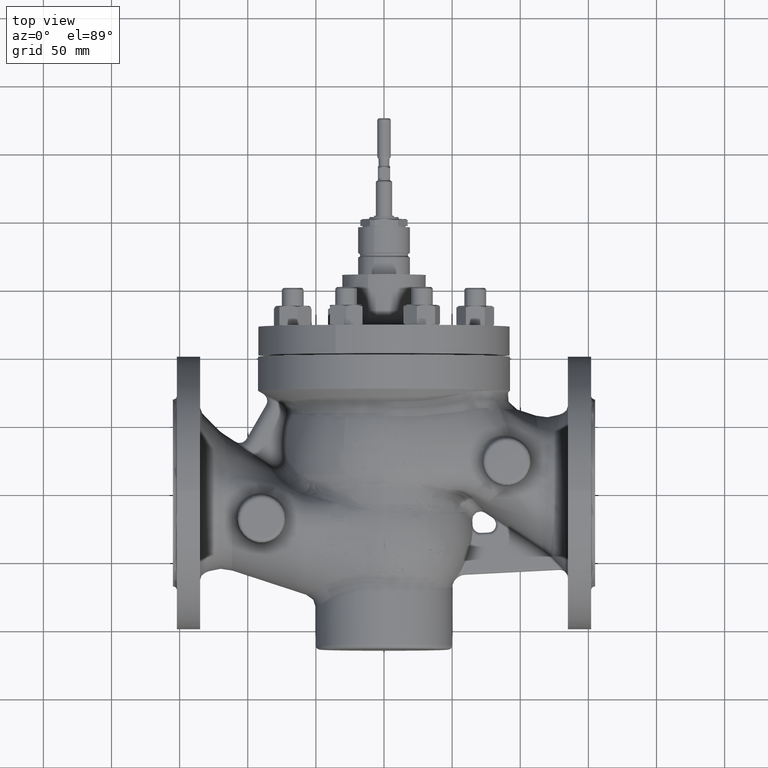
[diagram: clean part render]
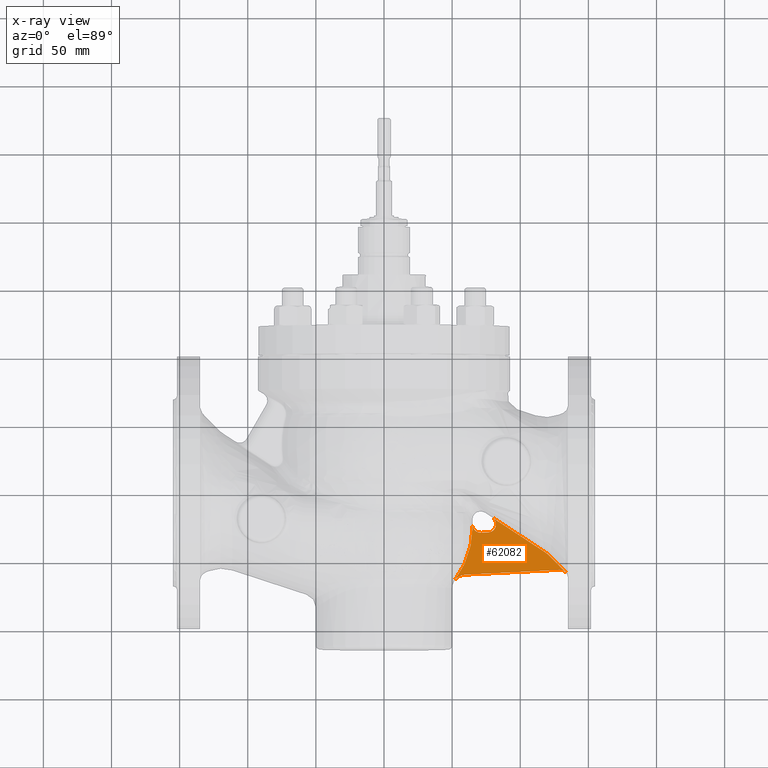
[diagram: x-ray — body ghosted, one internal face saturated and labeled with its STEP entity id]
A machine part, top view, then the same camera in x-ray: the body is ghosted and one INTERNAL B-rep face — a face not visible from any outside direction — is saturated and labeled: STEP entity #62082.
In plain terms, the highlighted planar face has unit normal (0, 0, 1).
Its self-contained STEP definition (entity closure, byte-faithful):
#3194 = EDGE_CURVE ( 'NONE', #36313, #146080, #50423, .T. ) ;
#4504 = VECTOR ( 'NONE', #110429, 1000.000000000000000 ) ;
#4753 = CARTESIAN_POINT ( 'NONE',  ( 117.8427582565180000, -43.30953236035019700, 0.02500000000000000100 ) ) ;
#4908 = ORIENTED_EDGE ( 'NONE', *, *, #214493, .F. ) ;
#7238 = CARTESIAN_POINT ( 'NONE',  ( 82.21968799206042900, -23.13017826876830800, 0.02499999999999999800 ) ) ;
#7498 = CARTESIAN_POINT ( 'NONE',  ( 67.25756937767720000, -28.08436771730998800, 0.02500000000000000100 ) ) ;
#7981 = CARTESIAN_POINT ( 'NONE',  ( 79.47799630254508000, -28.15001369179655600, 0.02500000000000000500 ) ) ;
#9271 = AXIS2_PLACEMENT_3D ( 'NONE', #157021, #53603, #174350 ) ;
#10170 = ORIENTED_EDGE ( 'NONE', *, *, #106017, .T. ) ;
#10675 = CARTESIAN_POINT ( 'NONE',  ( 110.5509075900524000, -38.51138769444470700, 0.02500000000000000100 ) ) ;
#12164 = CARTESIAN_POINT ( 'NONE',  ( 71.28902120242450700, -29.36779990385665300, 0.02500000000000000100 ) ) ;
#15455 = EDGE_CURVE ( 'NONE', #146080, #60257, #198242, .T. ) ;
#16217 = CARTESIAN_POINT ( 'NONE',  ( 64.98930302670817100, -23.68329853732720400, 0.02500000000000000100 ) ) ;
#16490 = VERTEX_POINT ( 'NONE', #189987 ) ;
#16874 = DIRECTION ( 'NONE',  ( 1.000000000000000000, 0.0000000000000000000, 0.0000000000000000000 ) ) ;
#17128 = EDGE_CURVE ( 'NONE', #182906, #78696, #53164, .T. ) ;
#17459 = CARTESIAN_POINT ( 'NONE',  ( 133.2820038425403800, -58.24967153179039800, 0.02500000000000000100 ) ) ;
#17739 = ORIENTED_EDGE ( 'NONE', *, *, #202924, .T. ) ;
#20114 = B_SPLINE_CURVE_WITH_KNOTS ( 'NONE', 3,
 ( #95204, #165401, #96688, #217444, #114072, #10675, #131389, #28027, #148760 ),
 .UNSPECIFIED., .F., .F.,
 ( 4, 2, 1, 2, 4 ),
 ( 0.1240357815538172000, 0.5000000000000000000, 0.7500000000000000000, 0.8750000000000000000, 1.000000000000000000 ),
 .UNSPECIFIED. ) ;
#21356 = VERTEX_POINT ( 'NONE', #204614 ) ;
#24377 = CARTESIAN_POINT ( 'NONE',  ( 62.34197996200149600, -29.82710111252465200, 0.02500000000000000100 ) ) ;
#24596 = DIRECTION ( 'NONE',  ( 0.9986849297500293200, 0.05126803185396271900, 0.0000000000000000000 ) ) ;
#24597 = CARTESIAN_POINT ( 'NONE',  ( 82.14200407331510700, -24.07037620390699200, 0.02499999999999999100 ) ) ;
#24864 = CARTESIAN_POINT ( 'NONE',  ( 66.67054406410746000, -27.56727275851982400, 0.02500000000000000100 ) ) ;
#25343 = CARTESIAN_POINT ( 'NONE',  ( 78.64841096245261600, -28.59891615864598800, 0.02500000000000000500 ) ) ;
#28027 = CARTESIAN_POINT ( 'NONE',  ( 116.0221392584064000, -42.10633365646359700, 0.02500000000000000100 ) ) ;
#30799 = ORIENTED_EDGE ( 'NONE', *, *, #3194, .F. ) ;
#31366 = ORIENTED_EDGE ( 'NONE', *, *, #59773, .T. ) ;
#31941 = CARTESIAN_POINT ( 'NONE',  ( 59.48731968146039900, -60.01315070249959400, 0.02500000000000000100 ) ) ;
#36313 = VERTEX_POINT ( 'NONE', #118141 ) ;
#38967 = EDGE_CURVE ( 'NONE', #21356, #182906, #164741, .T. ) ;
#41188 = CARTESIAN_POINT ( 'NONE',  ( 80.50293416270423600, -18.86676010782229400, 0.02500000000000000500 ) ) ;
#41935 = CARTESIAN_POINT ( 'NONE',  ( 81.92029473466824600, -24.98018371431900400, 0.02500000000000000500 ) ) ;
#42194 = CARTESIAN_POINT ( 'NONE',  ( 65.93224362554181500, -26.64098916104409700, 0.02500000000000000500 ) ) ;
#42677 = CARTESIAN_POINT ( 'NONE',  ( 77.15090761103164100, -29.06687678970092700, 0.02500000000000000500 ) ) ;
#43016 = ORIENTED_EDGE ( 'NONE', *, *, #171569, .T. ) ;
#47767 = VECTOR ( 'NONE', #24596, 1000.000000000000000 ) ;
#49239 = EDGE_CURVE ( 'NONE', #148759, #16490, #112517, .T. ) ;
#50423 = LINE ( 'NONE', #24377, #4504 ) ;
#52920 = VERTEX_POINT ( 'NONE', #4753 ) ;
#53164 = LINE ( 'NONE', #180047, #47767 ) ;
#53603 = DIRECTION ( 'NONE',  ( -0.0000000000000000000, -0.0000000000000000000, -1.000000000000000000 ) ) ;
#56581 = ORIENTED_EDGE ( 'NONE', *, *, #49239, .T. ) ;
#57137 = AXIS2_PLACEMENT_3D ( 'NONE', #165493, #62066, #182804 ) ;
#58566 = CARTESIAN_POINT ( 'NONE',  ( 81.27061739758829600, -19.86632388080428400, 0.02500000000000000100 ) ) ;
#58834 = CARTESIAN_POINT ( 'NONE',  ( 71.28902120242450700, -29.36779990385665300, 0.02500000000000000100 ) ) ;
#59314 = CARTESIAN_POINT ( 'NONE',  ( 81.55621362619581300, -25.85183045235871500, 0.02500000000000000500 ) ) ;
#59570 = CARTESIAN_POINT ( 'NONE',  ( 65.39443289206947400, -25.59807146609349700, 0.02500000000000000500 ) ) ;
#59773 = EDGE_CURVE ( 'NONE', #21356, #148759, #222341, .T. ) ;
#60257 = VERTEX_POINT ( 'NONE', #68793 ) ;
#60618 = VERTEX_POINT ( 'NONE', #17459 ) ;
#61034 = VERTEX_POINT ( 'NONE', #106470 ) ;
#62066 = DIRECTION ( 'NONE',  ( 0.0000000000000000000, 0.0000000000000000000, 1.000000000000000000 ) ) ;
#62082 = ADVANCED_FACE ( 'NONE', ( #162781 ), #161008, .F. ) ;
#66747 = LINE ( 'NONE', #198635, #193644 ) ;
#68286 = CARTESIAN_POINT ( 'NONE',  ( 64.98428503009466800, -23.56985522443235200, 0.02500000000000000100 ) ) ;
#68793 = CARTESIAN_POINT ( 'NONE',  ( 64.98930302670817100, -23.68329853732720400, 0.02500000000000000100 ) ) ;
#72899 = CIRCLE ( 'NONE', #128104, 25.00042097777810600 ) ;
#74970 = DIRECTION ( 'NONE',  ( 0.0000000000000000000, 0.0000000000000000000, 1.000000000000000000 ) ) ;
#75931 = CARTESIAN_POINT ( 'NONE',  ( 81.71245257958077000, -20.69083047071363500, 0.02500000000000000100 ) ) ;
#76196 = CARTESIAN_POINT ( 'NONE',  ( 69.34051903568384000, -29.16023778268589700, 0.02500000000000000100 ) ) ;
#76475 = CARTESIAN_POINT ( 'NONE',  ( 65.00000000000000000, -25.00000000000000000, 0.02500000000000000100 ) ) ;
#76675 = CARTESIAN_POINT ( 'NONE',  ( 81.06522508585473500, -26.64829624320373800, 0.02499999999999999800 ) ) ;
#76928 = CARTESIAN_POINT ( 'NONE',  ( 65.06735039617613800, -24.46097334568738500, 0.02500000000000000100 ) ) ;
#78696 = VERTEX_POINT ( 'NONE', #205601 ) ;
#81276 = EDGE_CURVE ( 'NONE', #135787, #36313, #140432, .T. ) ;
#84285 = AXIS2_PLACEMENT_3D ( 'NONE', #92652, #213414, #110028 ) ;
#91095 = B_SPLINE_CURVE_WITH_KNOTS ( 'NONE', 3,
 ( #16217, #136924, #68286, #189018 ),
 .UNSPECIFIED., .F., .F.,
 ( 4, 4 ),
 ( 0.009694075580220139200, 0.009863835196998493500 ),
 .UNSPECIFIED. ) ;
#91557 = CARTESIAN_POINT ( 'NONE',  ( 92.64100192127020300, -106.7026297337554000, 0.02500000000000000100 ) ) ;
#92652 = CARTESIAN_POINT ( 'NONE',  ( 3.717264591378844400E-015, -25.00000000000000000, 0.02500000000000000100 ) ) ;
#93279 = CARTESIAN_POINT ( 'NONE',  ( 82.02321926425690900, -21.58333371867495400, 0.02499999999999999400 ) ) ;
#93541 = CARTESIAN_POINT ( 'NONE',  ( 68.24791897516483600, -28.73141321631365500, 0.02499999999999999400 ) ) ;
#94020 = CARTESIAN_POINT ( 'NONE',  ( 80.44986843472783300, -27.36579429837913900, 0.02500000000000000100 ) ) ;
#94279 = CARTESIAN_POINT ( 'NONE',  ( 64.98930302670817100, -23.68329853732720400, 0.02500000000000000100 ) ) ;
#95204 = CARTESIAN_POINT ( 'NONE',  ( 79.51440622362230200, -18.09808608283109900, 0.02500000000000000100 ) ) ;
#96688 = CARTESIAN_POINT ( 'NONE',  ( 90.48097182560061900, -25.31259641131729800, 0.02500000000000000100 ) ) ;
#98512 = DIRECTION ( 'NONE',  ( -0.0000000000000000000, -0.0000000000000000000, -1.000000000000000000 ) ) ;
#106017 = EDGE_CURVE ( 'NONE', #135787, #52920, #20114, .T. ) ;
#106470 = CARTESIAN_POINT ( 'NONE',  ( 121.9008863757730000, -46.65442252570049700, 0.02500000000000000100 ) ) ;
#110028 = DIRECTION ( 'NONE',  ( 1.000000000000000000, 0.0000000000000000000, 0.0000000000000000000 ) ) ;
#110161 = CARTESIAN_POINT ( 'NONE',  ( 70.50505420521423600, -29.36960300674676100, 0.02500000000000000100 ) ) ;
#110241 = CIRCLE ( 'NONE', #9271, 6.000000002019140400 ) ;
#110429 = DIRECTION ( 'NONE',  ( -0.9986849297500293200, -0.05126803185396271900, 0.0000000000000000000 ) ) ;
#110643 = CARTESIAN_POINT ( 'NONE',  ( 82.18941235602656500, -22.50436186976937900, 0.02500000000000000500 ) ) ;
#110901 = CARTESIAN_POINT ( 'NONE',  ( 67.57380381894181200, -28.31804335496399700, 0.02500000000000001200 ) ) ;
#111386 = CARTESIAN_POINT ( 'NONE',  ( 79.73742910947571300, -27.97191967420358000, 0.02500000000000000500 ) ) ;
#112517 = CIRCLE ( 'NONE', #84285, 65.00000000000000000 ) ;
#114072 = CARTESIAN_POINT ( 'NONE',  ( 105.0806929944085900, -34.91489567164720100, 0.02500000000000000100 ) ) ;
#118141 = CARTESIAN_POINT ( 'NONE',  ( 76.51916672259680800, -29.09930755042125100, 0.02500000000000000100 ) ) ;
#120295 = DIRECTION ( 'NONE',  ( 0.0000000000000000000, 0.0000000000000000000, -1.000000000000000000 ) ) ;
#127993 = CARTESIAN_POINT ( 'NONE',  ( 82.21001846456366000, -23.44833622138237000, 0.02499999999999999800 ) ) ;
#128104 = AXIS2_PLACEMENT_3D ( 'NONE', #223669, #120295, #16874 ) ;
#128247 = CARTESIAN_POINT ( 'NONE',  ( 67.10598900855298200, -27.96037449498294700, 0.02500000000000000800 ) ) ;
#128726 = CARTESIAN_POINT ( 'NONE',  ( 78.93092770969499800, -28.46486880852631200, 0.02500000000000000500 ) ) ;
#130676 = ORIENTED_EDGE ( 'NONE', *, *, #81276, .F. ) ;
#131389 = CARTESIAN_POINT ( 'NONE',  ( 114.1978396381526200, -40.90886310685620200, 0.02500000000000000100 ) ) ;
#135085 = EDGE_CURVE ( 'NONE', #78696, #60618, #110241, .T. ) ;
#135787 = VERTEX_POINT ( 'NONE', #217222 ) ;
#136924 = CARTESIAN_POINT ( 'NONE',  ( 64.98639419988070600, -23.62663551729735200, 0.02500000000000000100 ) ) ;
#140432 = B_SPLINE_CURVE_WITH_KNOTS ( 'NONE', 3,
 ( #195933, #213292, #41188, #161978, #58566, #179303, #75931, #196674, #93279, #214032, #110643, #7238, #127993, #24597, #145333, #41935, #162731, #59314, #180048, #76675, #197411, #94020, #214768, #111386, #7981, #128726, #25343, #146074, #42677, #163463 ),
 .UNSPECIFIED., .F., .F.,
 ( 4, 2, 2, 2, 2, 2, 2, 2, 2, 2, 2, 2, 2, 2, 4 ),
 ( 6.164338350880058800E-006, 0.001876947318824373700, 0.002812338809061112100, 0.003747730299297850300, 0.004683121789534587200, 0.005618513279771325400, 0.006553904770008062700, 0.007489296260244800000, 0.008424687750481538200, 0.009360079240718275500, 0.01029547073095501600, 0.01123086222119175400, 0.01216625371142849300, 0.01310164520166523000, 0.01497242818213866300 ),
 .UNSPECIFIED. ) ;
#145333 = CARTESIAN_POINT ( 'NONE',  ( 82.08403710554635800, -24.37674138533286000, 0.02500000000000000100 ) ) ;
#145591 = CARTESIAN_POINT ( 'NONE',  ( 66.40432165073924900, -27.27524440789702700, 0.02500000000000000500 ) ) ;
#146074 = CARTESIAN_POINT ( 'NONE',  ( 77.77487626016211700, -28.93342387273504500, 0.02500000000000000100 ) ) ;
#146080 = VERTEX_POINT ( 'NONE', #12164 ) ;
#148759 = VERTEX_POINT ( 'NONE', #76475 ) ;
#148760 = CARTESIAN_POINT ( 'NONE',  ( 117.8427582565180000, -43.30953236035019700, 0.02500000000000000100 ) ) ;
#155640 = ORIENTED_EDGE ( 'NONE', *, *, #135085, .F. ) ;
#157021 = CARTESIAN_POINT ( 'NONE',  ( 128.9999999979807800, -62.45258041724179800, 0.02500000000000000100 ) ) ;
#158100 = EDGE_LOOP ( 'NONE', ( #31366, #56581, #4908, #211425, #30799, #130676, #10170, #43016, #17739, #155640, #200101, #180932 ) ) ;
#161008 = PLANE ( 'NONE',  #214821 ) ;
#161978 = CARTESIAN_POINT ( 'NONE',  ( 81.09352628024410600, -19.60495592502073600, 0.02499999999999999400 ) ) ;
#162244 = CARTESIAN_POINT ( 'NONE',  ( 70.89577235609027600, -29.38798754640516700, 0.02500000000000001200 ) ) ;
#162731 = CARTESIAN_POINT ( 'NONE',  ( 81.81321074785840600, -25.27971692416311800, 0.02500000000000000500 ) ) ;
#162781 = FACE_OUTER_BOUND ( 'NONE', #158100, .T. ) ;
#162984 = CARTESIAN_POINT ( 'NONE',  ( 65.73065605447131100, -26.30534486160567900, 0.02500000000000001200 ) ) ;
#163463 = CARTESIAN_POINT ( 'NONE',  ( 76.51916672259680800, -29.09930755042125100, 0.02500000000000000100 ) ) ;
#164741 = CIRCLE ( 'NONE', #203976, 9.999999999999994700 ) ;
#165401 = CARTESIAN_POINT ( 'NONE',  ( 84.99766506702538000, -21.70537766390711500, 0.02500000000000000100 ) ) ;
#165493 = CARTESIAN_POINT ( 'NONE',  ( 3.717264591378844400E-015, -25.00000000000000000, 0.02500000000000000100 ) ) ;
#171569 = EDGE_CURVE ( 'NONE', #52920, #61034, #72899, .T. ) ;
#174350 = DIRECTION ( 'NONE',  ( 1.000000000000000000, -9.251858535429503900E-015, 0.0000000000000000000 ) ) ;
#179303 = CARTESIAN_POINT ( 'NONE',  ( 81.57946265770647200, -20.40850432781075700, 0.02499999999999999800 ) ) ;
#179562 = CARTESIAN_POINT ( 'NONE',  ( 69.72862331780903800, -29.25654274289128100, 0.02500000000000000100 ) ) ;
#179801 = DIRECTION ( 'NONE',  ( 0.7004863782526962200, -0.7136657718304981700, 0.0000000000000000000 ) ) ;
#180047 = CARTESIAN_POINT ( 'NONE',  ( 59.48731968146039900, -60.01315070249959400, 0.02500000000000000100 ) ) ;
#180048 = CARTESIAN_POINT ( 'NONE',  ( 81.40650175568438800, -26.12547920396545500, 0.02500000000000000100 ) ) ;
#180303 = CARTESIAN_POINT ( 'NONE',  ( 65.25907091137038700, -25.22197754228755800, 0.02500000000000000100 ) ) ;
#180932 = ORIENTED_EDGE ( 'NONE', *, *, #38967, .F. ) ;
#182804 = DIRECTION ( 'NONE',  ( 1.000000000000000000, 0.0000000000000000000, 0.0000000000000000000 ) ) ;
#182906 = VERTEX_POINT ( 'NONE', #31941 ) ;
#189018 = CARTESIAN_POINT ( 'NONE',  ( 64.98298777165010200, -23.51295586159114800, 0.02500000000000000100 ) ) ;
#189987 = CARTESIAN_POINT ( 'NONE',  ( 64.98298777165010200, -23.51295586159114800, 0.02500000000000000100 ) ) ;
#193644 = VECTOR ( 'NONE', #179801, 999.9999999999998900 ) ;
#195707 = DIRECTION ( 'NONE',  ( 1.000000000000000000, 0.0000000000000000000, 0.0000000000000000000 ) ) ;
#195933 = CARTESIAN_POINT ( 'NONE',  ( 79.51440622362230200, -18.09808608283109900, 0.02500000000000000100 ) ) ;
#196674 = CARTESIAN_POINT ( 'NONE',  ( 81.93468883024117100, -21.27841497217567100, 0.02499999999999999800 ) ) ;
#196933 = CARTESIAN_POINT ( 'NONE',  ( 68.60216502313969000, -28.89771004370184900, 0.02499999999999999800 ) ) ;
#197411 = CARTESIAN_POINT ( 'NONE',  ( 80.87186278916858800, -26.89935810472953300, 0.02499999999999999800 ) ) ;
#197670 = CARTESIAN_POINT ( 'NONE',  ( 65.00940664629428100, -24.07491064311811600, 0.02500000000000000100 ) ) ;
#198242 = B_SPLINE_CURVE_WITH_KNOTS ( 'NONE', 3,
 ( #58834, #162244, #110161, #179562, #76196, #196933, #93541, #214294, #110901, #7498, #128247, #24864, #145591, #42194, #162984, #59570, #180303, #76928, #197670, #94279 ),
 .UNSPECIFIED., .F., .F.,
 ( 4, 2, 2, 2, 2, 2, 2, 2, 2, 4 ),
 ( 0.0003080709557152326200, 0.001481321533778379900, 0.002654572111841527400, 0.003827822689904674400, 0.004414447978936230000, 0.005001073267967786800, 0.006174323846030874500, 0.007347574424093962200, 0.008520825002157051500, 0.009694075580220139200 ),
 .UNSPECIFIED. ) ;
#198635 = CARTESIAN_POINT ( 'NONE',  ( 121.9008863757730000, -46.65442252570049700, 0.02500000000000000100 ) ) ;
#200101 = ORIENTED_EDGE ( 'NONE', *, *, #17128, .F. ) ;
#201905 = CARTESIAN_POINT ( 'NONE',  ( 60.00000000000000000, -70.00000000000000000, 0.02500000000000000100 ) ) ;
#202924 = EDGE_CURVE ( 'NONE', #61034, #60618, #66747, .T. ) ;
#203976 = AXIS2_PLACEMENT_3D ( 'NONE', #201905, #98512, #219265 ) ;
#204614 = CARTESIAN_POINT ( 'NONE',  ( 52.00000000000000000, -64.00000000000000000, 0.02500000000000000100 ) ) ;
#205601 = CARTESIAN_POINT ( 'NONE',  ( 128.6923918067533900, -56.46047083672510800, 0.02500000000000000100 ) ) ;
#211425 = ORIENTED_EDGE ( 'NONE', *, *, #15455, .F. ) ;
#213292 = CARTESIAN_POINT ( 'NONE',  ( 80.04241728953617500, -18.44623981112560400, 0.02500000000000001200 ) ) ;
#213414 = DIRECTION ( 'NONE',  ( 0.0000000000000000000, 0.0000000000000000000, 1.000000000000000000 ) ) ;
#214032 = CARTESIAN_POINT ( 'NONE',  ( 82.15003208221469300, -22.19500563773744900, 0.02500000000000000100 ) ) ;
#214294 = CARTESIAN_POINT ( 'NONE',  ( 67.73943705964617800, -28.42826714959861800, 0.02500000000000000100 ) ) ;
#214493 = EDGE_CURVE ( 'NONE', #60257, #16490, #91095, .T. ) ;
#214768 = CARTESIAN_POINT ( 'NONE',  ( 80.22282348856816700, -27.58012036128323500, 0.02500000000000000500 ) ) ;
#214821 = AXIS2_PLACEMENT_3D ( 'NONE', #91557, #74970, #195707 ) ;
#217222 = CARTESIAN_POINT ( 'NONE',  ( 79.51440622362230200, -18.09808608283109900, 0.02500000000000000100 ) ) ;
#217444 = CARTESIAN_POINT ( 'NONE',  ( 99.61094595740770800, -31.31769290902525100, 0.02500000000000000100 ) ) ;
#219265 = DIRECTION ( 'NONE',  ( 1.000000000000000000, 0.0000000000000000000, 0.0000000000000000000 ) ) ;
#222341 = CIRCLE ( 'NONE', #57137, 65.00000000000000000 ) ;
#223669 = CARTESIAN_POINT ( 'NONE',  ( 104.0588164119770100, -64.16674928353408800, 0.02500000000000000100 ) ) ;